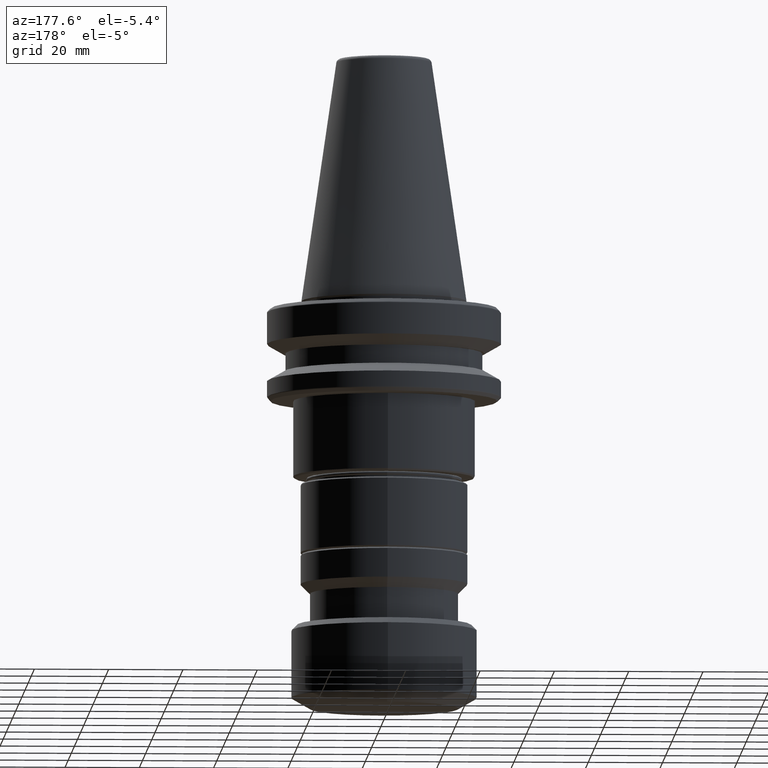
[diagram: clean part render]
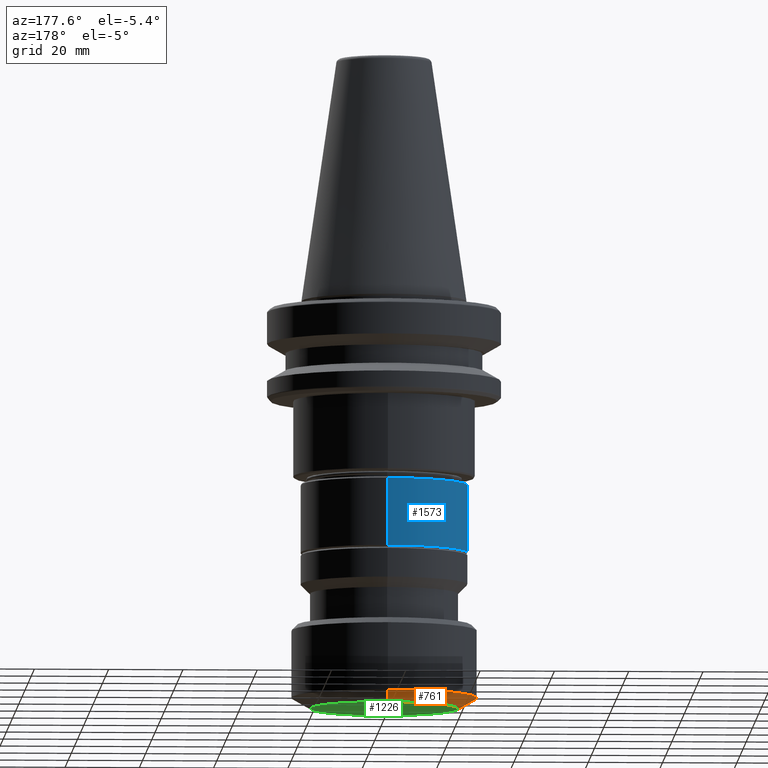
[diagram: same view with three faces highlighted in distinct colors, each labeled with its STEP entity id]
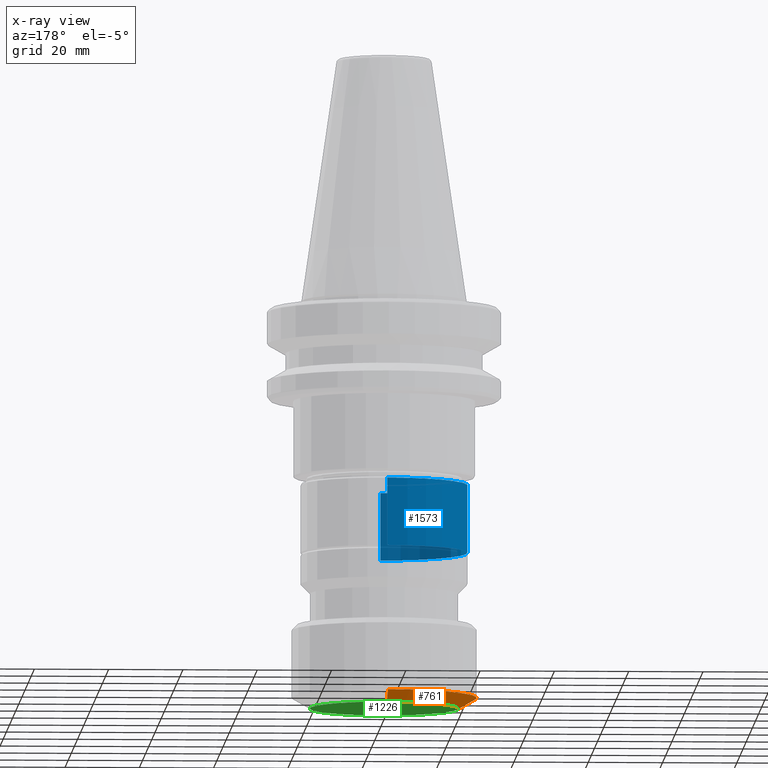
[diagram: x-ray of the same camera — body ghosted, the three highlighted faces saturated]
A machine part, auxiliary view with three faces highlighted in distinct colors.
The next image is the same camera in x-ray (body ghosted, the three faces saturated) — at least one of them is partly hidden behind the body in this view.
Their STEP definitions:

[orange] entity #761 — the highlighted conical surface has half-angle 60 deg.
#19 = AXIS2_PLACEMENT_3D ( 'NONE', #256, #1720, #259 ) ;
#30 = AXIS2_PLACEMENT_3D ( 'NONE', #261, #1772, #1875 ) ;
#56 = CONICAL_SURFACE ( 'NONE', #30, 25.00000000000005000, 1.047197551196607800 ) ;
#76 = FACE_OUTER_BOUND ( 'NONE', #726, .T. ) ;
#147 = EDGE_CURVE ( 'NONE', #1052, #906, #503, .T. ) ;
#226 = EDGE_CURVE ( 'NONE', #1049, #906, #359, .T. ) ;
#256 = CARTESIAN_POINT ( 'NONE',  ( 0.0000000000000000000, 1.774937036747276600E-027, -110.0000000000001800 ) ) ;
#259 = DIRECTION ( 'NONE',  ( 0.0000000000000000000, -1.000000000000000000, -9.020562075079163400E-015 ) ) ;
#261 = CARTESIAN_POINT ( 'NONE',  ( 0.0000000000000000000, -2.681514236675872700E-014, -107.1132486540523800 ) ) ;
#289 = CARTESIAN_POINT ( 'NONE',  ( 0.0000000000000000000, -25.00000000000008500, -107.1132486540526300 ) ) ;
#359 = LINE ( 'NONE', #400, #387 ) ;
#387 = VECTOR ( 'NONE', #1314, 1000.000000000000000 ) ;
#400 = CARTESIAN_POINT ( 'NONE',  ( 0.0000000000000000000, -25.00000000000007800, -107.1132486540526300 ) ) ;
#503 = CIRCLE ( 'NONE', #1844, 25.00000000000005000 ) ;
#574 = ORIENTED_EDGE ( 'NONE', *, *, #226, .T. ) ;
#726 = EDGE_LOOP ( 'NONE', ( #1899, #953, #574, #885 ) ) ;
#761 = ADVANCED_FACE ( 'NONE', ( #76 ), #56, .T. ) ;
#763 = CARTESIAN_POINT ( 'NONE',  ( 0.0000000000000000000, -20.00000000000051900, -110.0000000000003600 ) ) ;
#767 = CARTESIAN_POINT ( 'NONE',  ( 2.755455298081579500E-015, 20.00000000000051900, -110.0000000000000000 ) ) ;
#836 = DIRECTION ( 'NONE',  ( 1.060575238724913100E-016, 0.8660254037844390400, 0.4999999999999992800 ) ) ;
#885 = ORIENTED_EDGE ( 'NONE', *, *, #147, .F. ) ;
#906 = VERTEX_POINT ( 'NONE', #289 ) ;
#953 = ORIENTED_EDGE ( 'NONE', *, *, #1322, .T. ) ;
#1049 = VERTEX_POINT ( 'NONE', #763 ) ;
#1052 = VERTEX_POINT ( 'NONE', #1465 ) ;
#1142 = VERTEX_POINT ( 'NONE', #767 ) ;
#1271 = CARTESIAN_POINT ( 'NONE',  ( 3.061616997868389000E-015, 25.00000000000002100, -107.1132486540521600 ) ) ;
#1314 = DIRECTION ( 'NONE',  ( 0.0000000000000000000, -0.8660254037844483700, 0.4999999999999831800 ) ) ;
#1322 = EDGE_CURVE ( 'NONE', #1142, #1049, #1596, .T. ) ;
#1358 = DIRECTION ( 'NONE',  ( 0.0000000000000000000, -1.000000000000000000, -9.436895709313811700E-015 ) ) ;
#1386 = EDGE_CURVE ( 'NONE', #1142, #1052, #1524, .T. ) ;
#1465 = CARTESIAN_POINT ( 'NONE',  ( 3.061616997868388200E-015, 25.00000000000001400, -107.1132486540521600 ) ) ;
#1520 = VECTOR ( 'NONE', #836, 1000.000000000000000 ) ;
#1524 = LINE ( 'NONE', #1271, #1520 ) ;
#1554 = DIRECTION ( 'NONE',  ( -0.0000000000000000000, -9.289037798285427000E-015, 1.000000000000000000 ) ) ;
#1596 = CIRCLE ( 'NONE', #19, 20.00000000000051900 ) ;
#1720 = DIRECTION ( 'NONE',  ( -0.0000000000000000000, -9.289037798285427000E-015, 1.000000000000000000 ) ) ;
#1772 = DIRECTION ( 'NONE',  ( -0.0000000000000000000, -9.289037798285427000E-015, 1.000000000000000000 ) ) ;
#1844 = AXIS2_PLACEMENT_3D ( 'NONE', #1881, #1554, #1358 ) ;
#1875 = DIRECTION ( 'NONE',  ( 0.0000000000000000000, -1.000000000000000000, -9.436895709313811700E-015 ) ) ;
#1881 = CARTESIAN_POINT ( 'NONE',  ( 0.0000000000000000000, -2.681514236675872700E-014, -107.1132486540523800 ) ) ;
#1899 = ORIENTED_EDGE ( 'NONE', *, *, #1386, .F. ) ;

[blue] entity #1573 — the highlighted cylindrical surface (partial cylindrical patch) has radius 22.5 mm, axis along (-0, -0, 1).
#50 = DIRECTION ( 'NONE',  ( 0.0000000000000000000, -1.000000000000000000, -9.251858538543281500E-015 ) ) ;
#99 = LINE ( 'NONE', #334, #144 ) ;
#144 = VECTOR ( 'NONE', #356, 1000.000000000000000 ) ;
#161 = AXIS2_PLACEMENT_3D ( 'NONE', #724, #874, #597 ) ;
#176 = CIRCLE ( 'NONE', #569, 22.49999999999941400 ) ;
#318 = VERTEX_POINT ( 'NONE', #1502 ) ;
#322 = AXIS2_PLACEMENT_3D ( 'NONE', #1626, #1620, #50 ) ;
#334 = CARTESIAN_POINT ( 'NONE',  ( 0.0000000000000000000, -22.49999999999982900, -56.21613433702089700 ) ) ;
#356 = DIRECTION ( 'NONE',  ( -0.0000000000000000000, -9.289037798285427000E-015, 1.000000000000000000 ) ) ;
#365 = VERTEX_POINT ( 'NONE', #1065 ) ;
#368 = DIRECTION ( 'NONE',  ( 0.0000000000000000000, -1.000000000000000000, -9.251858538543212000E-015 ) ) ;
#373 = VERTEX_POINT ( 'NONE', #1267 ) ;
#389 = EDGE_CURVE ( 'NONE', #365, #373, #176, .T. ) ;
#486 = EDGE_CURVE ( 'NONE', #733, #373, #99, .T. ) ;
#551 = ORIENTED_EDGE ( 'NONE', *, *, #486, .T. ) ;
#569 = AXIS2_PLACEMENT_3D ( 'NONE', #1061, #935, #368 ) ;
#597 = DIRECTION ( 'NONE',  ( 0.0000000000000000000, -1.000000000000000000, -9.251858538543246700E-015 ) ) ;
#632 = EDGE_LOOP ( 'NONE', ( #1568, #649, #551, #1817 ) ) ;
#649 = ORIENTED_EDGE ( 'NONE', *, *, #1181, .T. ) ;
#724 = CARTESIAN_POINT ( 'NONE',  ( 0.0000000000000000000, -4.996003610813204400E-013, -56.21613433702069100 ) ) ;
#733 = VERTEX_POINT ( 'NONE', #1381 ) ;
#874 = DIRECTION ( 'NONE',  ( -0.0000000000000000000, -9.289037798285427000E-015, 1.000000000000000000 ) ) ;
#935 = DIRECTION ( 'NONE',  ( -0.0000000000000000000, -9.289037798285427000E-015, 1.000000000000000000 ) ) ;
#1061 = CARTESIAN_POINT ( 'NONE',  ( 0.0000000000000000000, -5.601289792366057100E-013, -49.70000000000059300 ) ) ;
#1065 = CARTESIAN_POINT ( 'NONE',  ( 2.755455298081467900E-015, 22.49999999999885600, -49.70000000000037900 ) ) ;
#1090 = CARTESIAN_POINT ( 'NONE',  ( 2.755455298081462700E-015, 22.49999999999883100, -56.21613433702048500 ) ) ;
#1181 = EDGE_CURVE ( 'NONE', #318, #733, #1771, .T. ) ;
#1267 = CARTESIAN_POINT ( 'NONE',  ( 0.0000000000000000000, -22.49999999999997200, -49.70000000000079900 ) ) ;
#1275 = LINE ( 'NONE', #1090, #1360 ) ;
#1360 = VECTOR ( 'NONE', #1535, 1000.000000000000000 ) ;
#1381 = CARTESIAN_POINT ( 'NONE',  ( 0.0000000000000000000, -22.49999999999964100, -67.90000000000078700 ) ) ;
#1435 = FACE_OUTER_BOUND ( 'NONE', #632, .T. ) ;
#1444 = CYLINDRICAL_SURFACE ( 'NONE', #161, 22.49999999999932900 ) ;
#1502 = CARTESIAN_POINT ( 'NONE',  ( 2.755455298081452100E-015, 22.49999999999885200, -67.90000000000037500 ) ) ;
#1535 = DIRECTION ( 'NONE',  ( -0.0000000000000000000, -9.289037798285427000E-015, 1.000000000000000000 ) ) ;
#1568 = ORIENTED_EDGE ( 'NONE', *, *, #1865, .F. ) ;
#1573 = ADVANCED_FACE ( 'NONE', ( #1435 ), #1444, .T. ) ;
#1620 = DIRECTION ( 'NONE',  ( -0.0000000000000000000, -9.289037798285427000E-015, 1.000000000000000000 ) ) ;
#1626 = CARTESIAN_POINT ( 'NONE',  ( 0.0000000000000000000, -3.910684913078109400E-013, -67.90000000000058800 ) ) ;
#1771 = CIRCLE ( 'NONE', #322, 22.49999999999924700 ) ;
#1817 = ORIENTED_EDGE ( 'NONE', *, *, #389, .F. ) ;
#1865 = EDGE_CURVE ( 'NONE', #318, #365, #1275, .T. ) ;

[green] entity #1226 — the highlighted planar face has unit normal (0, -0, 1).
#19 = AXIS2_PLACEMENT_3D ( 'NONE', #256, #1720, #259 ) ;
#64 = PLANE ( 'NONE',  #1185 ) ;
#256 = CARTESIAN_POINT ( 'NONE',  ( 0.0000000000000000000, 1.774937036747276600E-027, -110.0000000000001800 ) ) ;
#259 = DIRECTION ( 'NONE',  ( 0.0000000000000000000, -1.000000000000000000, -9.020562075079163400E-015 ) ) ;
#560 = DIRECTION ( 'NONE',  ( 0.0000000000000000000, -9.289037798285427000E-015, 1.000000000000000000 ) ) ;
#573 = CIRCLE ( 'NONE', #821, 20.00000000000051900 ) ;
#622 = CARTESIAN_POINT ( 'NONE',  ( 0.0000000000000000000, 1.774937036747276600E-027, -110.0000000000001800 ) ) ;
#727 = ORIENTED_EDGE ( 'NONE', *, *, #1694, .F. ) ;
#757 = ORIENTED_EDGE ( 'NONE', *, *, #1322, .F. ) ;
#758 = DIRECTION ( 'NONE',  ( 0.0000000000000000000, -1.000000000000000000, -9.020562075079163400E-015 ) ) ;
#763 = CARTESIAN_POINT ( 'NONE',  ( 0.0000000000000000000, -20.00000000000051900, -110.0000000000003600 ) ) ;
#767 = CARTESIAN_POINT ( 'NONE',  ( 2.755455298081579500E-015, 20.00000000000051900, -110.0000000000000000 ) ) ;
#821 = AXIS2_PLACEMENT_3D ( 'NONE', #622, #1647, #758 ) ;
#839 = DIRECTION ( 'NONE',  ( 0.0000000000000000000, -1.000000000000000000, -9.289037798285427000E-015 ) ) ;
#1049 = VERTEX_POINT ( 'NONE', #763 ) ;
#1142 = VERTEX_POINT ( 'NONE', #767 ) ;
#1185 = AXIS2_PLACEMENT_3D ( 'NONE', #1602, #560, #839 ) ;
#1226 = ADVANCED_FACE ( 'NONE', ( #1741 ), #64, .F. ) ;
#1232 = EDGE_LOOP ( 'NONE', ( #727, #757 ) ) ;
#1322 = EDGE_CURVE ( 'NONE', #1142, #1049, #1596, .T. ) ;
#1596 = CIRCLE ( 'NONE', #19, 20.00000000000051900 ) ;
#1602 = CARTESIAN_POINT ( 'NONE',  ( 0.0000000000000000000, 8.628622321797760300E-028, -110.0000000000001000 ) ) ;
#1647 = DIRECTION ( 'NONE',  ( -0.0000000000000000000, -9.289037798285427000E-015, 1.000000000000000000 ) ) ;
#1694 = EDGE_CURVE ( 'NONE', #1049, #1142, #573, .T. ) ;
#1720 = DIRECTION ( 'NONE',  ( -0.0000000000000000000, -9.289037798285427000E-015, 1.000000000000000000 ) ) ;
#1741 = FACE_OUTER_BOUND ( 'NONE', #1232, .T. ) ;